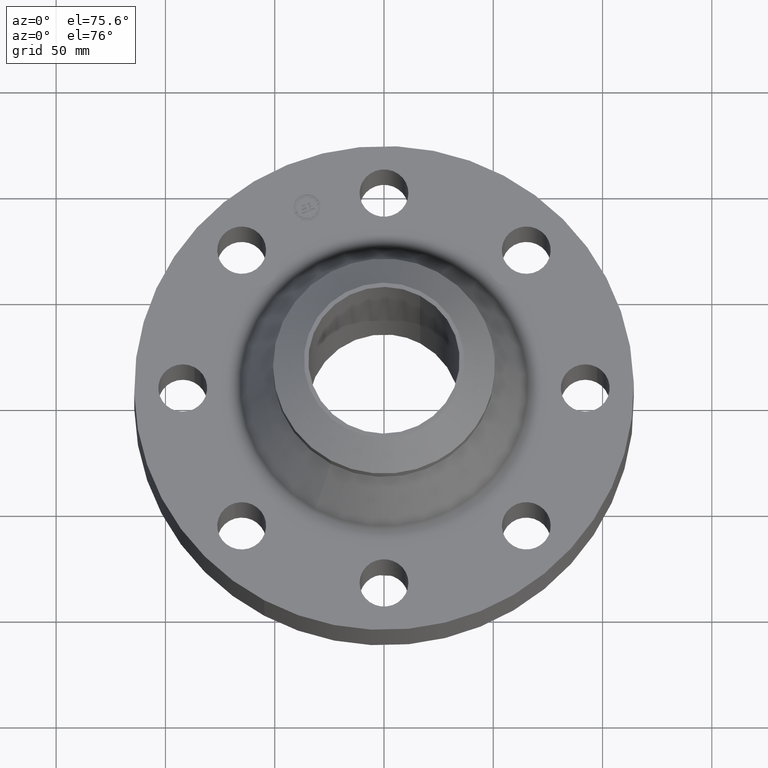
[diagram: clean part render]
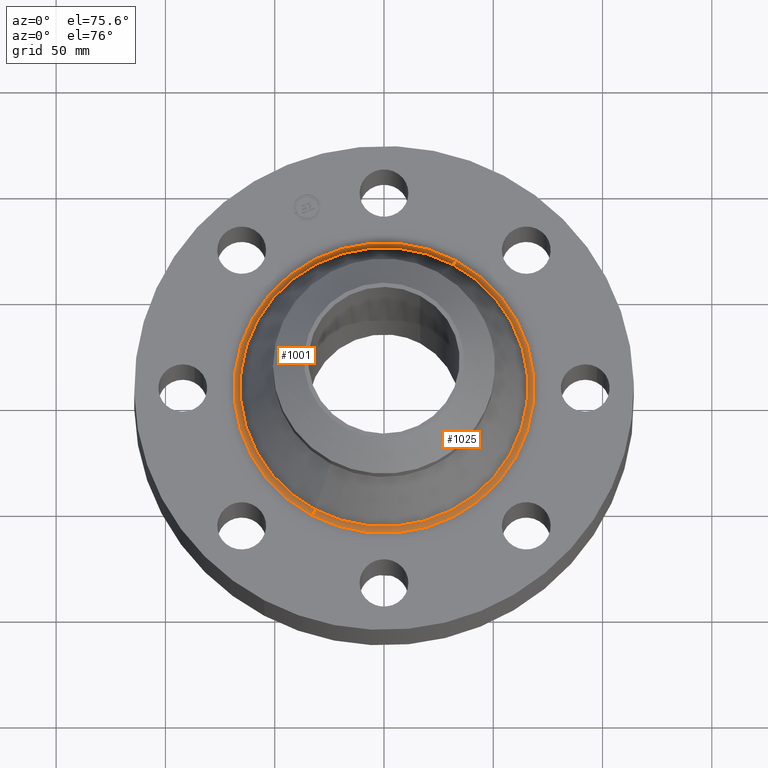
[diagram: same view with one multi-face feature highlighted, each face labeled with its STEP entity id]
A machine part, auxiliary view. The highlighted faces form ONE feature: a constant-radius fillet chain: 2 tangent blend faces with common blend radius 3.048 mm. The faces share edges in the B-rep.
Their STEP definitions:
[1] entity #1001 (Torus):
#345=AXIS2_PLACEMENT_3D('Circle Axis2P3D',#343,#344,$) ;
#974=AXIS2_PLACEMENT_3D('Torus Axis2P3D',#971,#972,#973) ;
#978=AXIS2_PLACEMENT_3D('Circle Axis2P3D',#976,#977,$) ;
#985=AXIS2_PLACEMENT_3D('Circle Axis2P3D',#983,#984,$) ;
#992=AXIS2_PLACEMENT_3D('Circle Axis2P3D',#990,#991,$) ;
#343=CARTESIAN_POINT('Axis2P3D Location',(4.36650890423E-011,3.47886199288E-012,1.12)) ;
#347=CARTESIAN_POINT('Vertex',(-1.29521090955,-2.37086766696,1.12)) ;
#349=CARTESIAN_POINT('Vertex',(1.29521090955,2.37086766696,1.12)) ;
#971=CARTESIAN_POINT('Axis2P3D Location',(0.,0.,1.24)) ;
#976=CARTESIAN_POINT('Axis2P3D Location',(-1.29521090955,-2.37086766696,1.24)) ;
#980=CARTESIAN_POINT('Vertex',(-1.24302954502,-2.27535031989,1.18946742036)) ;
#983=CARTESIAN_POINT('Axis2P3D Location',(0.,0.,1.18946742036)) ;
#987=CARTESIAN_POINT('Vertex',(1.24302954502,2.27535031989,1.18946742036)) ;
#990=CARTESIAN_POINT('Axis2P3D Location',(1.29521090955,2.37086766696,1.24)) ;
#344=DIRECTION('Axis2P3D Direction',(0.,0.,-0.0393700787402)) ;
#972=DIRECTION('Axis2P3D Direction',(0.,0.,-0.0393700787402)) ;
#973=DIRECTION('Axis2P3D XDirection',(-0.0188750212049,-0.0345504945626,0.)) ;
#977=DIRECTION('Axis2P3D Direction',(0.0345504945626,-0.0188750212049,0.)) ;
#984=DIRECTION('Axis2P3D Direction',(-0.,0.,-0.0393700787402)) ;
#991=DIRECTION('Axis2P3D Direction',(-0.0345504945626,0.0188750212049,0.)) ;
#996=ORIENTED_EDGE('',*,*,#351,.F.) ;
#997=ORIENTED_EDGE('',*,*,#982,.T.) ;
#998=ORIENTED_EDGE('',*,*,#989,.T.) ;
#999=ORIENTED_EDGE('',*,*,#994,.F.) ;
#1001=ADVANCED_FACE('PartBody',(#1000),#975,.F.) ;
#346=CIRCLE('generated circle',#345,2.701589309) ;
#979=CIRCLE('generated circle',#978,0.12) ;
#986=CIRCLE('generated circle',#985,2.59274787205) ;
#993=CIRCLE('generated circle',#992,0.12) ;
#975=TOROIDAL_SURFACE('homeo Torus',#974,2.70158930899,0.12) ;
#351=EDGE_CURVE('',#348,#350,#346,.T.) ;
#982=EDGE_CURVE('',#348,#981,#979,.T.) ;
#989=EDGE_CURVE('',#981,#988,#986,.T.) ;
#994=EDGE_CURVE('',#350,#988,#993,.T.) ;
#995=EDGE_LOOP('',(#996,#997,#998,#999)) ;
#1000=FACE_OUTER_BOUND('',#995,.T.) ;
#348=VERTEX_POINT('',#347) ;
#350=VERTEX_POINT('',#349) ;
#981=VERTEX_POINT('',#980) ;
#988=VERTEX_POINT('',#987) ;
[2] entity #1025 (Torus):
#354=AXIS2_PLACEMENT_3D('Circle Axis2P3D',#352,#353,$) ;
#978=AXIS2_PLACEMENT_3D('Circle Axis2P3D',#976,#977,$) ;
#992=AXIS2_PLACEMENT_3D('Circle Axis2P3D',#990,#991,$) ;
#1012=AXIS2_PLACEMENT_3D('Torus Axis2P3D',#1009,#1010,#1011) ;
#1016=AXIS2_PLACEMENT_3D('Circle Axis2P3D',#1014,#1015,$) ;
#347=CARTESIAN_POINT('Vertex',(-1.29521090955,-2.37086766696,1.12)) ;
#349=CARTESIAN_POINT('Vertex',(1.29521090955,2.37086766696,1.12)) ;
#352=CARTESIAN_POINT('Axis2P3D Location',(-1.28118688012E-011,3.43326417165E-011,1.12)) ;
#976=CARTESIAN_POINT('Axis2P3D Location',(-1.29521090955,-2.37086766696,1.24)) ;
#980=CARTESIAN_POINT('Vertex',(-1.24302954502,-2.27535031989,1.18946742036)) ;
#987=CARTESIAN_POINT('Vertex',(1.24302954502,2.27535031989,1.18946742036)) ;
#990=CARTESIAN_POINT('Axis2P3D Location',(1.29521090955,2.37086766696,1.24)) ;
#1009=CARTESIAN_POINT('Axis2P3D Location',(0.,0.,1.24)) ;
#1014=CARTESIAN_POINT('Axis2P3D Location',(0.,0.,1.18946742036)) ;
#353=DIRECTION('Axis2P3D Direction',(0.,0.,-0.0393700787402)) ;
#977=DIRECTION('Axis2P3D Direction',(0.0345504945626,-0.0188750212049,0.)) ;
#991=DIRECTION('Axis2P3D Direction',(-0.0345504945626,0.0188750212049,0.)) ;
#1010=DIRECTION('Axis2P3D Direction',(0.,0.,-0.0393700787402)) ;
#1011=DIRECTION('Axis2P3D XDirection',(0.0188750212049,0.0345504945626,0.)) ;
#1015=DIRECTION('Axis2P3D Direction',(-0.,0.,-0.0393700787402)) ;
#1020=ORIENTED_EDGE('',*,*,#356,.F.) ;
#1021=ORIENTED_EDGE('',*,*,#994,.T.) ;
#1022=ORIENTED_EDGE('',*,*,#1018,.T.) ;
#1023=ORIENTED_EDGE('',*,*,#982,.F.) ;
#1025=ADVANCED_FACE('PartBody',(#1024),#1013,.F.) ;
#355=CIRCLE('generated circle',#354,2.701589309) ;
#979=CIRCLE('generated circle',#978,0.12) ;
#993=CIRCLE('generated circle',#992,0.12) ;
#1017=CIRCLE('generated circle',#1016,2.59274787205) ;
#1013=TOROIDAL_SURFACE('homeo Torus',#1012,2.70158930899,0.12) ;
#356=EDGE_CURVE('',#350,#348,#355,.T.) ;
#982=EDGE_CURVE('',#348,#981,#979,.T.) ;
#994=EDGE_CURVE('',#350,#988,#993,.T.) ;
#1018=EDGE_CURVE('',#988,#981,#1017,.T.) ;
#1019=EDGE_LOOP('',(#1020,#1021,#1022,#1023)) ;
#1024=FACE_OUTER_BOUND('',#1019,.T.) ;
#348=VERTEX_POINT('',#347) ;
#350=VERTEX_POINT('',#349) ;
#981=VERTEX_POINT('',#980) ;
#988=VERTEX_POINT('',#987) ;